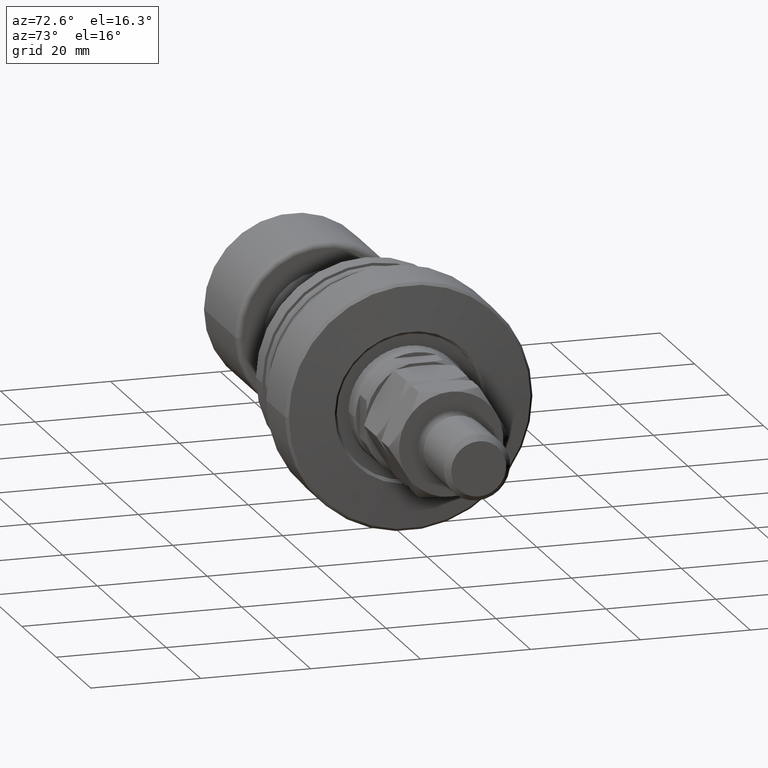
[diagram: clean part render]
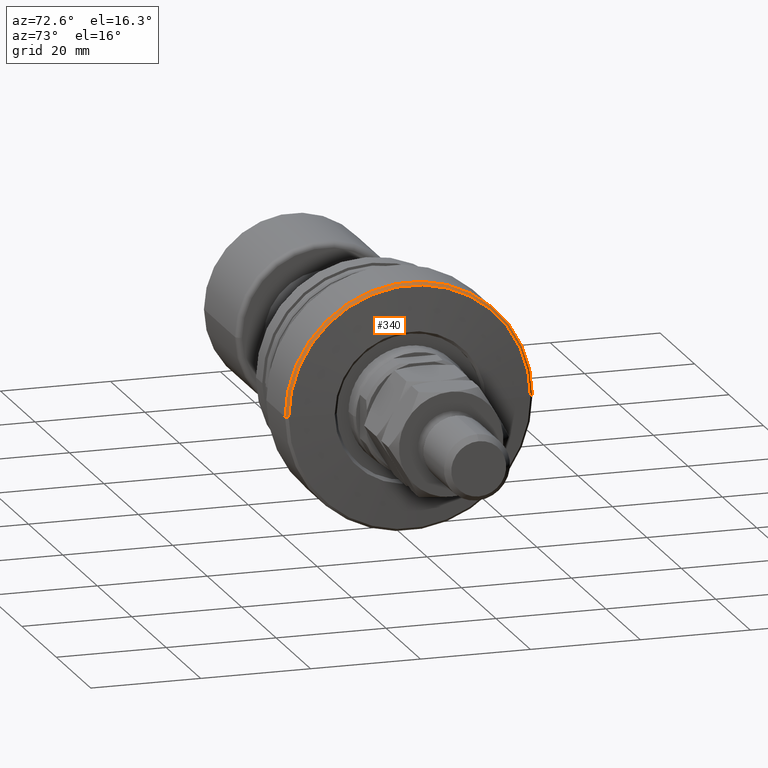
[diagram: same view with one face highlighted and labeled with its STEP entity id]
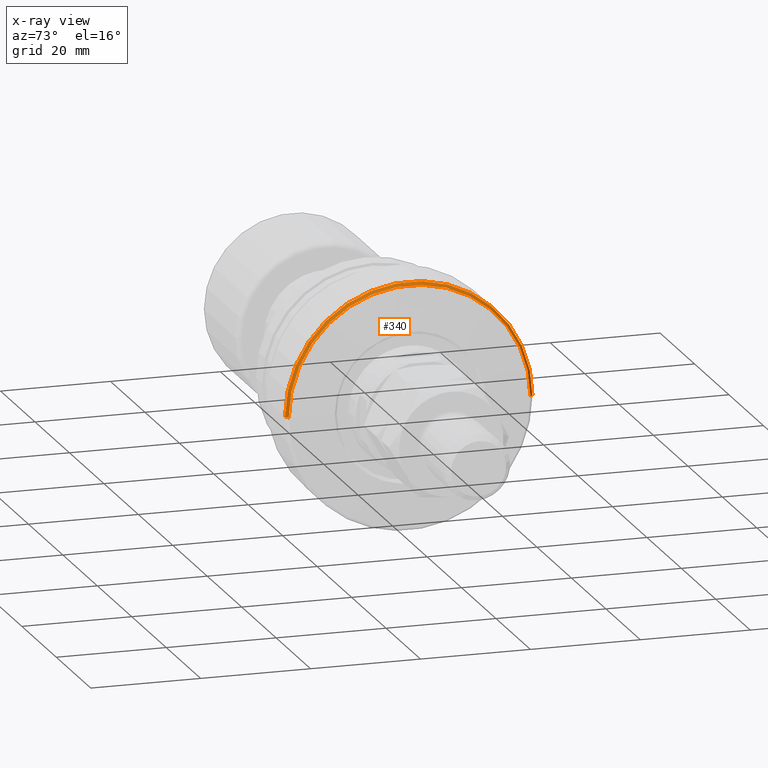
[diagram: x-ray of the same camera — body ghosted, the highlighted face saturated]
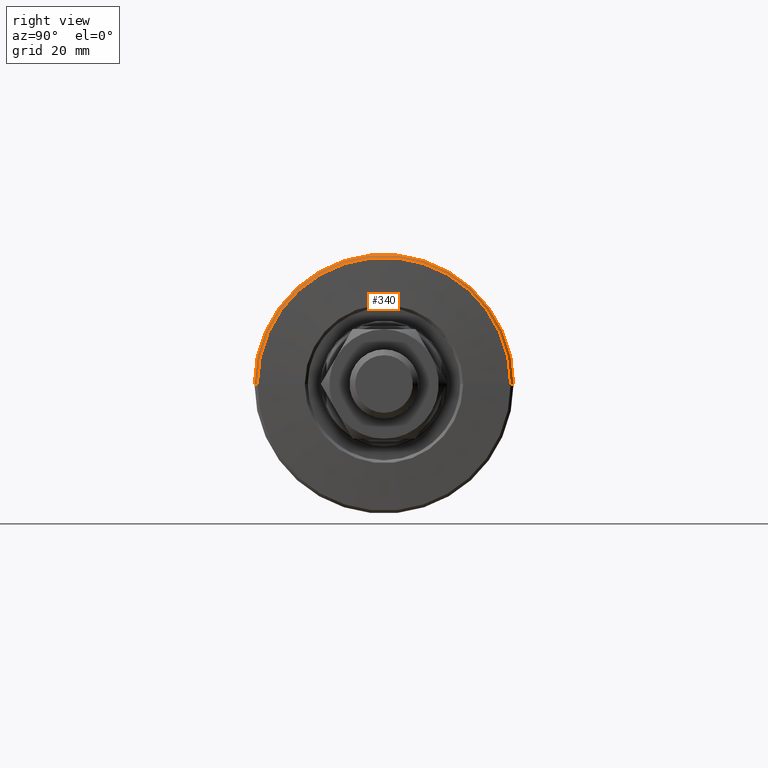
[diagram: same view with one face highlighted and labeled with its STEP entity id]
A machine part, auxiliary view. The second image highlights one B-rep face of the part: STEP entity #340.
The next image is the same camera in x-ray: the body ghosted, the highlighted face saturated — about 0% of this face is hidden behind the body in this view.
A second angle (right view) of the same face is appended — the face is thin or edge-on in the first view.
In plain terms, the highlighted conical surface has half-angle 45 deg.
Its self-contained STEP definition (entity closure, byte-faithful):
#36 = ORIENTED_EDGE ( 'NONE', *, *, #3207, .T. ) ;
#340 = ADVANCED_FACE ( 'NONE', ( #1025 ), #4018, .T. ) ;
#373 = VERTEX_POINT ( 'NONE', #393 ) ;
#393 = CARTESIAN_POINT ( 'NONE',  ( -1.100000000000612932, 21.99999999999989342, 2.724839128102853891E-15 ) ) ;
#475 = CIRCLE ( 'NONE', #1650, 22.49999999999996092 ) ;
#648 = CARTESIAN_POINT ( 'NONE',  ( -1.600000000000696865, -22.50000000000000000, 0.000000000000000000 ) ) ;
#811 = DIRECTION ( 'NONE',  ( -1.000000000000000000, 1.333885945136072597E-15, -0.000000000000000000 ) ) ;
#894 = DIRECTION ( 'NONE',  ( -0.7071067811865441310, 0.7071067811865507924, 8.659560562354963673E-17 ) ) ;
#899 = CARTESIAN_POINT ( 'NONE',  ( -1.100000000000642242, -3.892282224755411592E-14, 0.000000000000000000 ) ) ;
#1025 = FACE_OUTER_BOUND ( 'NONE', #3298, .T. ) ;
#1045 = ORIENTED_EDGE ( 'NONE', *, *, #1478, .F. ) ;
#1055 = EDGE_CURVE ( 'NONE', #3051, #373, #3964, .T. ) ;
#1296 = AXIS2_PLACEMENT_3D ( 'NONE', #2879, #1924, #1661 ) ;
#1391 = VERTEX_POINT ( 'NONE', #2480 ) ;
#1456 = VECTOR ( 'NONE', #894, 1000.000000000000000 ) ;
#1478 = EDGE_CURVE ( 'NONE', #3051, #3568, #3150, .T. ) ;
#1592 = DIRECTION ( 'NONE',  ( -0.7071067811865459074, -0.7071067811865491270, 0.000000000000000000 ) ) ;
#1634 = VECTOR ( 'NONE', #1592, 1000.000000000000000 ) ;
#1650 = AXIS2_PLACEMENT_3D ( 'NONE', #1727, #811, #2967 ) ;
#1661 = DIRECTION ( 'NONE',  ( -1.329954664915554407E-15, -1.000000000000000000, 0.000000000000000000 ) ) ;
#1727 = CARTESIAN_POINT ( 'NONE',  ( -1.600000000000666889, -3.825587927498604708E-14, 0.000000000000000000 ) ) ;
#1763 = AXIS2_PLACEMENT_3D ( 'NONE', #899, #2139, #3667 ) ;
#1924 = DIRECTION ( 'NONE',  ( -1.000000000000000000, 1.333885945136072597E-15, -0.000000000000000000 ) ) ;
#2047 = CARTESIAN_POINT ( 'NONE',  ( -1.100000000000671330, -21.99999999999997158, 0.000000000000000000 ) ) ;
#2139 = DIRECTION ( 'NONE',  ( -1.000000000000000000, 1.333885945136072597E-15, -0.000000000000000000 ) ) ;
#2440 = LINE ( 'NONE', #3677, #1456 ) ;
#2480 = CARTESIAN_POINT ( 'NONE',  ( -1.600000000000636913, 22.49999999999992184, 2.755455298081540439E-15 ) ) ;
#2613 = ORIENTED_EDGE ( 'NONE', *, *, #3259, .F. ) ;
#2831 = ORIENTED_EDGE ( 'NONE', *, *, #1055, .T. ) ;
#2879 = CARTESIAN_POINT ( 'NONE',  ( -1.600000000000666889, -3.825587927498604708E-14, 0.000000000000000000 ) ) ;
#2967 = DIRECTION ( 'NONE',  ( -1.329954664915554407E-15, -1.000000000000000000, 0.000000000000000000 ) ) ;
#3051 = VERTEX_POINT ( 'NONE', #2047 ) ;
#3150 = LINE ( 'NONE', #648, #1634 ) ;
#3207 = EDGE_CURVE ( 'NONE', #373, #1391, #2440, .T. ) ;
#3259 = EDGE_CURVE ( 'NONE', #3568, #1391, #475, .T. ) ;
#3298 = EDGE_LOOP ( 'NONE', ( #2831, #36, #2613, #1045 ) ) ;
#3568 = VERTEX_POINT ( 'NONE', #3924 ) ;
#3667 = DIRECTION ( 'NONE',  ( -1.330611757141304966E-15, -1.000000000000000000, 0.000000000000000000 ) ) ;
#3677 = CARTESIAN_POINT ( 'NONE',  ( -1.600000000000636913, 22.49999999999992184, 2.755455298081539650E-15 ) ) ;
#3924 = CARTESIAN_POINT ( 'NONE',  ( -1.600000000000696865, -22.50000000000000000, 0.000000000000000000 ) ) ;
#3964 = CIRCLE ( 'NONE', #1763, 21.99999999999993250 ) ;
#4018 = CONICAL_SURFACE ( 'NONE', #1296, 22.49999999999996092, 0.7853981633974518317 ) ;